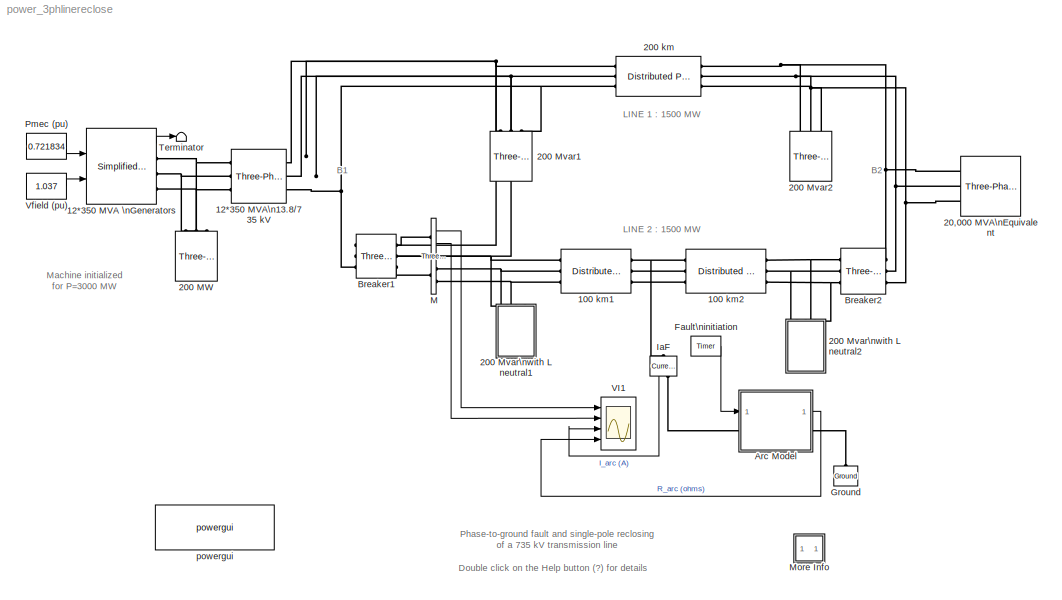
MODEL power_3phlinereclose
KIND model
BLOCK [Reference]  Breaker1  REF=powerlib/Elements/Three-Phase Breaker
  AttributesFormatString = \\n
  BreakerResistance = 0.001
  External = off
  InitialState = closed
  Measurements = None
  Ports = [0, 0, 0, 0, 0, 3, 3]
  ShowPortLabels = on
  SnubberCapacitance = inf
  SnubberResistance = 1e5
  SourceBlock = powerlib/Elements/Three-Phase Breaker
  SourceType = Three-Phase Breaker
  SwitchA = on
  SwitchB = off
  SwitchC = off
  SwitchTimes = [4/60  34/60]
BLOCK [Reference]  Breaker2  REF=powerlib/Elements/Three-Phase Breaker
  AttributesFormatString = \\n
  BreakerResistance = 0.001
  External = off
  InitialState = closed
  Measurements = None
  Ports = [0, 0, 0, 0, 0, 3, 3]
  ShowPortLabels = on
  SnubberCapacitance = inf
  SnubberResistance = 1e5
  SourceBlock = powerlib/Elements/Three-Phase Breaker
  SourceType = Three-Phase Breaker
  SwitchA = on
  SwitchB = off
  SwitchC = off
  SwitchTimes = [4/60  34/60]
BLOCK [Reference] 100  km1  REF=powerlib/Elements/Distributed Parameters Line
  AttributesFormatString = \\n
  Capacitance = [13.41e-9  8.57e-9]
  Frequency = 60
  Inductance = [0.8679e-3  3.008e-3]
  Length = 100
  Measurements = None
  Phases = 3
  Ports = [0, 0, 0, 0, 0, 3, 3]
  Resistance = [0.01165 0.2676]
  ShowPortLabels = on
  SourceBlock = powerlib/Elements/Distributed Parameters Line
  SourceType = Distributed Parameters Line
  x1 = [0 4.02705178345773e-008 472803.943791492 -555536.540470784;0.000101545182061977 3.40498179648926e-008 493719.170547751 -537034.187151238;0.000203090364123953 2.77792247481943e-008 513910.94844655 -517744.915291176;0.00030463554618593 2.14679265121164e-008 533349.690387524 -497696.989544924;0.000406180728247907 1.51251712295358e-008 552006.912697188 -476919.786225657;0.000507725910309884 8.7602529...<+48ch>
  x2 = [0 2.22321217810247e-008 426110.546159933 -596874.196271499;0.000101545182061977 1.8422129253629e-008 448642.075203804 -580128.633772847;0.000203090364123953 1.45851426997592e-008 470516.207054946 -562533.006252784;0.00030463554618593 1.0726784472575e-008 491700.889452397 -544113.096661183;0.000406180728247907 6.8527082412422e-009 512165.080388495 -524895.895772037;0.000507725910309884 2.968590706...<+45ch>
  x3 = [0 -4.58387424712223e-010 398.802996869194 -914.417744018894;0.000101545182061977 -4.6900146555621e-010 433.507996432241 -898.484331192913;0.000203090364123953 -4.78928276503843e-010 467.577774834296 -881.234365351327;0.00030463554618593 -4.88153311755674e-010 500.962409480231 -862.69312294444;0.000406180728247907 -4.96663053827248e-010 533.612981719056 -842.88777253575;0.000507725910309884 -5.044...<+52ch>
  x4 = [0 5.9976805423792e-010 2831.47677973377 -3826.92877538475;0.000101545182061977 5.94374114547943e-010 2975.86707537689 -3715.75790695924;0.000203090364123953 5.88109235871343e-010 3115.89681999411 -3599.14232224004;0.00030463554618593 5.80982598162212e-010 3251.36082738892 -3477.25289855288;0.000406180728247907 5.73004644113919e-010 3382.06060155949 -3350.26824100279;0.000507725910309884 5.6418706...<+47ch>
  x5 = 0.000507725910309884
BLOCK [Reference] 100  km2  REF=powerlib/Elements/Distributed Parameters Line
  AttributesFormatString = \\n
  Capacitance = [13.41e-9  8.57e-9]
  Frequency = 60
  Inductance = [0.8679e-3  3.008e-3]
  Length = 100
  Measurements = None
  Phases = 3
  Ports = [0, 0, 0, 0, 0, 3, 3]
  Resistance = [0.01165 0.2676]
  ShowPortLabels = on
  SourceBlock = powerlib/Elements/Distributed Parameters Line
  SourceType = Distributed Parameters Line
  x1 = [0 2.22321217810247e-008 426110.546159933 -596874.196271499;0.000101545182061977 1.8422129253629e-008 448642.075203804 -580128.633772847;0.000203090364123953 1.45851426997592e-008 470516.207054946 -562533.006252784;0.00030463554618593 1.0726784472575e-008 491700.889452397 -544113.096661183;0.000406180728247907 6.8527082412422e-009 512165.080388495 -524895.895772037;0.000507725910309884 2.968590706...<+45ch>
  x2 = [0 4.59735852839934e-009 372729.13846345 -628102.297137415;0.000101545182061977 3.36982514336241e-009 396494.954357377 -613376.898276943;0.000203090364123953 2.13735393882152e-009 419679.784462561 -597752.715567833;0.00030463554618593 9.01750860216852e-010 442249.655946163 -581252.643193266;0.000406180728247907 -3.3517355786267e-010 464171.497076899 -563900.858781373;0.000507725910309884 -1.571606...<+49ch>
  x3 = [0 -5.35956762016625e-010 506.939672451892 -849.356884933018;0.000101545182061977 -5.42195113669513e-010 539.075463597358 -829.332546268725;0.000203090364123953 -5.47638984453713e-010 570.421345111015 -808.09298300137;0.00030463554618593 -5.52280397441583e-010 600.931385735744 -785.669317555797;0.000406180728247907 -5.56112551550395e-010 630.560878975732 -762.094407426942;0.000507725910309884 -5.5...<+54ch>
  x4 = [0 5.99099720181025e-010 2312.99164112511 -4150.97769376106;0.000101545182061977 5.97237056827686e-010 2470.16390621821 -4059.41308469481;0.000203090364123953 5.94499259405894e-010 2623.71662934839 -3961.90019990165;0.00030463554618593 5.90890339622171e-010 2773.42480903965 -3858.58192543766;0.000406180728247907 5.86415585642443e-010 2919.06907724226 -3749.60965402176;0.000507725910309884 5.810815...<+49ch>
  x5 = 0.000507725910309884
BLOCK [Reference] 12*350 MVA \nGenerators  REF=powerlib/Machines/Simplified Synchronous\nMachine pu Units
  AttributesFormatString = \\n
  ConnectionType = 3-wire Y
  InitialConditions = [0 2.57592 0.717405 0.717405 0.717405 -11.4303 -131.43 108.57]
  InternalRL = [ 0.22/15, 0.22 ]
  LoadFlowParameters = [1 3000000000 0 0 0]
  Mechanical = [ inf,0,2 ]
  NominalParameters = [ 12*350e6,13.8e3,60 ]
  Ports = [2, 1, 0, 0, 0, 0, 3]
  ShowPortLabels = on
  SourceBlock = powerlib/Machines/Simplified Synchronous\nMachine pu Units
  SourceType = Simplified Synchronous Machine
  Units = 0
BLOCK [Reference] 12*350 MVA\n13.8//735 kV  REF=powerlib/Elements/Three-Phase\nTransformer\n(Two Windings)
  AttributesFormatString = \\n
  DataFile = 'hysteresis'
  Hysteresis = off
  InitialFluxes = [ 0.8 , -0.8 , 0.7 ]
  Lm = 500
  Measurements = None
  NominalPower = [ 12*350e6 , 60 ]
  Ports = [0, 0, 0, 0, 0, 3, 3]
  Rm = 500
  Saturation = [ 0,0 ; 0.0024,1.2 ; 1.0,1.52 ]
  SetInitialFlux = off
  SetSaturation = off
  ShowPortLabels = on
  SourceBlock = powerlib/Elements/Three-Phase\nTransformer\n(Two Windings)
  SourceType = Three-Phase Transformer (Two Windings)
  TransfoNumber = 0
  Winding1 = [ 13.8e3 , 0.002 , 0.08 ]
  Winding1Connection = Delta (D1)
  Winding2 = [ 735e3 , 0.002 , 0.08 ]
  Winding2Connection = Yg
BLOCK [Reference] 20,000 MVA\nEquivalent  REF=powerlib/Electrical\nSources/Three-Phase Source
  BaseVoltage = 735e3
  Frequency = 60
  Inductance = 735^2/20000/377
  InternalConnection = Yg
  PhaseAngle = 0
  Ports = [0, 0, 0, 0, 0, 0, 3]
  Resistance = 735^2/20000/10
  ShortCircuitLevel = 20000e6
  ShowPortLabels = on
  SourceBlock = powerlib/Electrical\nSources/Three-Phase Source
  SourceType = Three-Phase Source
  SpecifyImpedance = on
  Voltage = 735e3
  XRratio = 10
BLOCK [Reference] 200  km  REF=powerlib/Elements/Distributed Parameters Line
  AttributesFormatString = \\n
  Capacitance = [13.41e-9  8.57e-9]
  Frequency = 60
  Inductance = [0.8679e-3  3.008e-3]
  Length = 200
  Measurements = None
  Phases = 3
  Ports = [0, 0, 0, 0, 0, 3, 3]
  Resistance = [0.01165 0.2676]
  ShowPortLabels = on
  SourceBlock = powerlib/Elements/Distributed Parameters Line
  SourceType = Distributed Parameters Line
  x1 = [0 7.02850624185661e-008 397648.481541654 -611590.683160231;0.000203090364123953 5.84450393918789e-008 443263.140154233 -579383.379701848;0.000406180728247907 4.62625827673498e-008 486280.688841777 -543781.428257846;0.00060927109237186 3.38090704154687e-008 526449.08475992 -504993.423166597;0.000812361456495814 2.11574683413028e-008 563532.978450831 -463246.626078958;0.00101545182061977 8.38190317...<+47ch>
  x2 = [0 1.07284970616671e-008 289091.132559122 -670718.411670409;0.000203090364123953 8.34931711874698e-009 339546.435190599 -646641.332353954;0.000406180728247907 5.92121793939131e-009 388012.311368668 -618775.53597519;0.00060927109237186 3.45842592752685e-009 434204.796114864 -587284.290195669;0.000812361456495814 9.75370754826919e-010 477853.244411074 -552352.104440056;0.00101545182061977 -1.5133991...<+48ch>
  x3 = [0 -3.94575629964779e-010 275.972756440155 -952.973890092729;0.000203090364123953 -4.20081661821716e-010 348.056371840659 -929.072582426811;0.000406180728247907 -4.43126405666159e-010 418.100700470185 -899.727773133261;0.00060927109237186 -4.63574840722552e-010 485.69534767915 -865.111395514356;0.000812361456495814 -4.81307158171201e-010 550.444271673768 -825.426269362086;0.00101545182061977 -4.96...<+53ch>
  x4 = [0 5.79618896597322e-010 1755.99549575464 -4400.33732412217;0.000203090364123953 5.84376073526628e-010 2087.4253958724 -4253.13324126328;0.000406180728247907 5.85709349925921e-010 2406.62492372979 -4081.00975150415;0.00060927109237186 5.83610914034972e-010 2711.72386683501 -3884.97533848145;0.000812361456495814 5.78093060737307e-010 3000.93462901443 -3666.17858161356;0.00101545182061977 5.69188119...<+47ch>
  x5 = 0.00101545182061977
BLOCK [Reference] 200 MW  REF=powerlib/Elements/Three-Phase\nSeries RLC Load
  ActivePower = 200e6
  AttributesFormatString = \\n
  CapacitivePower = 0
  Configuration = Y (grounded)
  InductivePower = 0
  LConnTagsString = A|B|C
  LeftPortType = p1
  Measurements = None
  NominalFrequency = 60
  NominalVoltage = 13.8e3
  PhysicalDomain = powersysdomain
  Ports = [0, 0, 0, 0, 0, 3]
  RightPortType = p1
  SourceBlock = powerlib/Elements/Three-Phase\nSeries RLC Load
  SourceType = Three-Phase Series RLC Load
  SubClassName = unknown
BLOCK [Reference] 200 Mvar1  REF=powerlib/Elements/Three-Phase\nSeries RLC Load
  ActivePower = 200e6/250
  AttributesFormatString = \\n
  CapacitivePower = 0
  Configuration = Y (grounded)
  InductivePower = 200e6
  LConnTagsString = A|B|C
  LeftPortType = p1
  Measurements = None
  NominalFrequency = 60
  NominalVoltage = 735e3
  PhysicalDomain = powersysdomain
  Ports = [0, 0, 0, 0, 0, 3]
  RightPortType = p1
  SourceBlock = powerlib/Elements/Three-Phase\nSeries RLC Load
  SourceType = Three-Phase Series RLC Load
  SubClassName = unknown
BLOCK [Reference] 200 Mvar2  REF=powerlib/Elements/Three-Phase\nSeries RLC Load
  ActivePower = 200e6/250
  AttributesFormatString = \\n
  CapacitivePower = 0
  Configuration = Y (grounded)
  InductivePower = 200e6
  LConnTagsString = A|B|C
  LeftPortType = p1
  Measurements = None
  NominalFrequency = 60
  NominalVoltage = 735e3
  PhysicalDomain = powersysdomain
  Ports = [0, 0, 0, 0, 0, 3]
  RightPortType = p1
  SourceBlock = powerlib/Elements/Three-Phase\nSeries RLC Load
  SourceType = Three-Phase Series RLC Load
  SubClassName = unknown
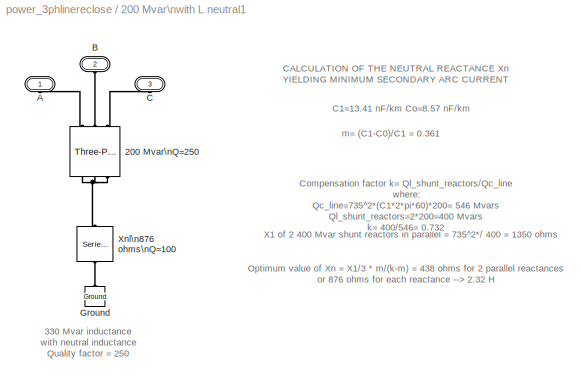
BLOCK [SubSystem] 200 Mvar\nwith L neutral1
  MaskIconFrame = on
  MaskIconOpaque = on
  MaskIconRotate = none
  MaskIconUnits = autoscale
  MinAlgLoopOccurrences = off
  Ports = [0, 0, 0, 0, 0, 3]
  RTWSystemCode = Auto
  TreatAsAtomicUnit = off
BLOCK [Reference] 200 Mvar\nwith L neutral1/200 Mvar\nQ=250  REF=powerlib/Elements/Three-Phase\nSeries RLC Branch
  AttributesFormatString = \\n
  Capacitance = inf
  Inductance = 735^2/200/377
  LConnTagsString = A|B|C
  LeftPortType = p1
  Measurements = None
  PhysicalDomain = powersysdomain
  Ports = [0, 0, 0, 0, 0, 3, 3]
  RConnTagsString = A|B|C
  Resistance = 735^2/200/250
  RightPortType = p1
  SourceBlock = powerlib/Elements/Three-Phase\nSeries RLC Branch
  SourceType = Three-Phase Series RLC Branch
  SubClassName = unknown
BLOCK [PMIOPort] 200 Mvar\nwith L neutral1/A
  Port = 1
  Side = Left
BLOCK [PMIOPort] 200 Mvar\nwith L neutral1/B
  Port = 2
  Side = Left
BLOCK [PMIOPort] 200 Mvar\nwith L neutral1/C
  Port = 3
  Side = Left
BLOCK [Reference] 200 Mvar\nwith L neutral1/Ground  REF=powerlib/Elements/Ground
  AttributesFormatString = \\n
  LConnTagsString = a
  LeftPortType = p1
  PhysicalDomain = powersysdomain
  Ports = [0, 0, 0, 0, 0, 1]
  RightPortType = p1
  SourceBlock = powerlib/Elements/Ground
  SourceType = Ground
  SubClassName = unknown
BLOCK [Reference] 200 Mvar\nwith L neutral1/Xnl\n876 ohms\nQ=100  REF=powerlib/Elements/Series RLC Branch
  AttributesFormatString = \\n
  Capacitance = inf
  Inductance = 876/377
  LConnTagsString = __new0
  LeftPortType = p1
  Measurements = None
  PhysicalDomain = powersysdomain
  Ports = [0, 0, 0, 0, 0, 1, 1]
  RConnTagsString = __new0
  Resistance = 876/100
  RightPortType = p1
  SourceBlock = powerlib/Elements/Series RLC Branch
  SourceType = Series RLC Branch
  SubClassName = unknown
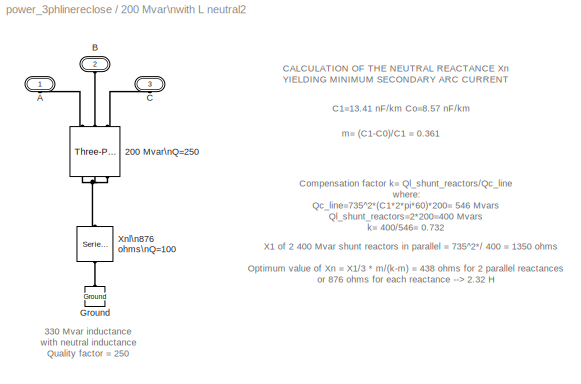
BLOCK [SubSystem] 200 Mvar\nwith L neutral2
  MaskIconFrame = on
  MaskIconOpaque = on
  MaskIconRotate = none
  MaskIconUnits = autoscale
  MinAlgLoopOccurrences = off
  Ports = [0, 0, 0, 0, 0, 3]
  RTWSystemCode = Auto
  TreatAsAtomicUnit = off
BLOCK [Reference] 200 Mvar\nwith L neutral2/200 Mvar\nQ=250  REF=powerlib/Elements/Three-Phase\nSeries RLC Branch
  AttributesFormatString = \\n
  Capacitance = inf
  Inductance = 735^2/200/377
  LConnTagsString = A|B|C
  LeftPortType = p1
  Measurements = None
  PhysicalDomain = powersysdomain
  Ports = [0, 0, 0, 0, 0, 3, 3]
  RConnTagsString = A|B|C
  Resistance = 735^2/200/250
  RightPortType = p1
  SourceBlock = powerlib/Elements/Three-Phase\nSeries RLC Branch
  SourceType = Three-Phase Series RLC Branch
  SubClassName = unknown
BLOCK [PMIOPort] 200 Mvar\nwith L neutral2/A
  Port = 1
  Side = Left
BLOCK [PMIOPort] 200 Mvar\nwith L neutral2/B
  Port = 2
  Side = Left
BLOCK [PMIOPort] 200 Mvar\nwith L neutral2/C
  Port = 3
  Side = Left
BLOCK [Reference] 200 Mvar\nwith L neutral2/Ground  REF=powerlib/Elements/Ground
  AttributesFormatString = \\n
  LConnTagsString = a
  LeftPortType = p1
  PhysicalDomain = powersysdomain
  Ports = [0, 0, 0, 0, 0, 1]
  RightPortType = p1
  SourceBlock = powerlib/Elements/Ground
  SourceType = Ground
  SubClassName = unknown
BLOCK [Reference] 200 Mvar\nwith L neutral2/Xnl\n876 ohms\nQ=100  REF=powerlib/Elements/Series RLC Branch
  AttributesFormatString = \\n
  Capacitance = inf
  Inductance = 876/377
  LConnTagsString = __new0
  LeftPortType = p1
  Measurements = None
  PhysicalDomain = powersysdomain
  Ports = [0, 0, 0, 0, 0, 1, 1]
  RConnTagsString = __new0
  Resistance = 876/100
  RightPortType = p1
  SourceBlock = powerlib/Elements/Series RLC Branch
  SourceType = Series RLC Branch
  SubClassName = unknown
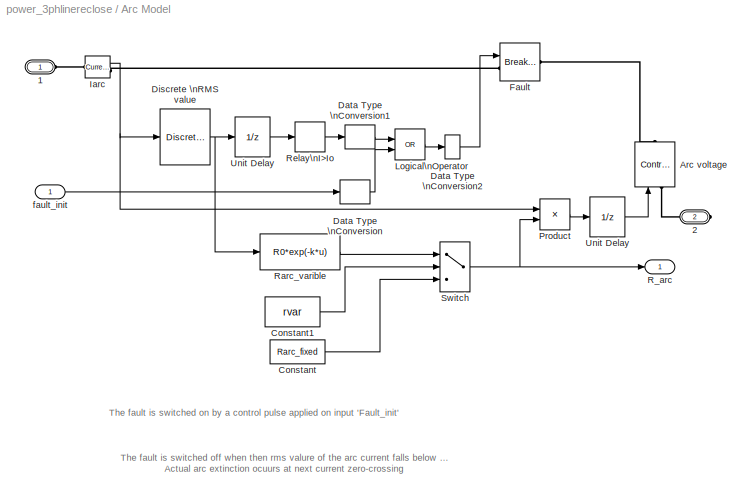
BLOCK [SubSystem] Arc  Model
  MaskCallbackString = ||||
  MaskDescription = This block implements a variable or fixed arc resistance model.\n \nInput 1, output 1:  Connection terminals of the arc \n                             resistance.\nInput 2 :    Control signal for the fault initiation\nUse a short pulse of 1 cycle. Once fault current starts flowing, it is sustained by the arc ionized path.\nOutput 2:  Arc resitance \n\nIf you check the 'Variable arc resistance' box...<+385ch>
  MaskEnableString = on,on,on,on,on
  MaskIconFrame = on
  MaskIconOpaque = on
  MaskIconRotate = none
  MaskIconUnits = autoscale
  MaskInitialization = if strcmp(Rarc_var,'on'), rvar=1; else, rvar=0; end\nR0=Rparam(1);\nk=Rparam(2);
  MaskPromptString = Variable arc resistance :|Arc resistance for fixed arc resistance :|Arc parameters for variable arc resistance [Ro k] : :|Current threshold for arc extinction Io (A rms) :|Sample time (s) :
  MaskStyleString = checkbox,edit,edit,edit,edit
  MaskTabNameString = ,,,,
  MaskToolTipString = on,on,on,on,on
  MaskTunableValueString = on,on,on,on,on
  MaskType = Arc model
  MaskValueString = on|0.1|[56.54 0.006375]|50|50e-6
  MaskVarAliasString = ,,,,
  MaskVariables = Rarc_var=&1;Rarc_fixed=@2;Rparam=@3;I0=@4;Ts=@5;
  MaskVisibilityString = on,on,on,on,on
  MinAlgLoopOccurrences = off
  Ports = [1, 1, 0, 0, 0, 1, 1]
  RTWSystemCode = Auto
  TreatAsAtomicUnit = off
BLOCK [PMIOPort] Arc  Model/1
  Port = 1
  Side = Left
BLOCK [PMIOPort] Arc  Model/2
  Port = 2
  Side = Right
BLOCK [Reference] Arc  Model/Arc voltage  REF=powerlib/Electrical\nSources/Controlled Voltage Source
  Amplitude = 0
  AttributesFormatString = \\n
  Description = source block
  Frequency = 0
  Initialize = on
  Measurements = None
  Phase = 0
  Ports = [1, 0, 0, 0, 0, 1, 1]
  ShowPortLabels = on
  SourceBlock = powerlib/Electrical\nSources/Controlled Voltage Source
  SourceType = AC
BLOCK [Constant] Arc  Model/Constant
  Value = Rarc_fixed
BLOCK [Constant] Arc  Model/Constant1
  Value = rvar
BLOCK [DataTypeConversion] Arc  Model/Data Type \nConversion
  OutDataTypeMode = boolean
BLOCK [DataTypeConversion] Arc  Model/Data Type \nConversion1
  OutDataTypeMode = boolean
BLOCK [DataTypeConversion] Arc  Model/Data Type \nConversion2
  OutDataTypeMode = double
BLOCK [Reference] Arc  Model/Discrete \nRMS value  REF=powerlib_extras/Discrete\nMeasurements/Discrete \nRMS value
  Freq = 60
  Mag_Init = 0
  Ports = [1, 1]
  ShowPortLabels = on
  SourceBlock = powerlib_extras/Discrete\nMeasurements/Discrete \nRMS value
  SourceType = Discrete RMS value
  Ts = Ts
BLOCK [Reference] Arc  Model/Fault  REF=powerlib/Elements/Breaker
  AttributesFormatString = \\n
  BreakerResistance = .001
  External = on
  InitialState = 0
  Measurements = None
  Ports = [1, 0, 0, 0, 0, 1, 1]
  ShowPortLabels = on
  SnubberCapacitance = 0
  SnubberResistance = inf
  SourceBlock = powerlib/Elements/Breaker
  SourceType = Breaker
  SwitchingTimes = [ 4/60  5/60 ]
BLOCK [Reference] Arc  Model/Iarc  REF=powerlib/Measurements/Current Measurement
  AttributesFormatString = \\n
  OutputType = Magnitude
  PSBequivalent = 0
  PhasorSimulation = off
  Ports = [0, 1, 0, 0, 0, 1, 1]
  ShowPortLabels = on
  SourceBlock = powerlib/Measurements/Current Measurement
  SourceType = Current Measurement
  Tag = PoWeRsYsTeMmEaSuReMeNt
BLOCK [Logic] Arc  Model/Logical\nOperator
  Operator = OR
  Ports = [2, 1]
BLOCK [Product] Arc  Model/Product
  Ports = [2, 1]
  RndMeth = Floor
BLOCK [Outport] Arc  Model/R_arc
  BusOutputAsStruct = off
  IconDisplay = Port number
BLOCK [Fcn] Arc  Model/Rarc_varible
  Expr = R0*exp(-k*u)
BLOCK [Relay] Arc  Model/Relay\nI>Io
  OffSwitchValue = I0
  OnSwitchValue = I0*1.2
  ZeroCross = off
BLOCK [Switch] Arc  Model/Switch
  SaturateOnIntegerOverflow = off
  Threshold = 0.5
  ZeroCross = off
BLOCK [UnitDelay] Arc  Model/Unit Delay
  SampleTime = Ts
BLOCK [UnitDelay] Arc  Model/Unit Delay 
  SampleTime = Ts
BLOCK [Inport] Arc  Model/fault_init
  IconDisplay = Port number
  LatchInput = off
  Port = 1
BLOCK [Reference] Fault\ninitiation  REF=powerlib_extras/Control \nBlocks/Timer
  Ports = [0, 1]
  ShowPortLabels = on
  SourceBlock = powerlib_extras/Control \nBlocks/Timer
  SourceType = Timer
  e = [1 0  ]
  t = [ 1/60 2/60 ]
BLOCK [Reference] Ground  REF=powerlib/Elements/Ground
  AttributesFormatString = \\n
  LConnTagsString = a
  LeftPortType = p1
  PhysicalDomain = powersysdomain
  Ports = [0, 0, 0, 0, 0, 1]
  RightPortType = p1
  SourceBlock = powerlib/Elements/Ground
  SourceType = Ground
  SubClassName = unknown
BLOCK [Reference] IaF  REF=powerlib/Measurements/Current Measurement
  AttributesFormatString = \\n
  OutputType = Magnitude
  PSBequivalent = 0
  PhasorSimulation = off
  Ports = [0, 1, 0, 0, 0, 1, 1]
  ShowPortLabels = on
  SourceBlock = powerlib/Measurements/Current Measurement
  SourceType = Current Measurement
  Tag = PoWeRsYsTeMmEaSuReMeNt
BLOCK [Reference] M  REF=powerlib/Measurements/Three-Phase\nV-I Measurement
  CurrentMeasurement = yes
  Ipu = on
  LabelI = I1
  LabelV = V1
  OutputType = Magnitude
  PSBequivalent = 0
  Pbase = 100e6
  PhasorSimulation = off
  Ports = [0, 2, 0, 0, 0, 3, 3]
  SetLabelI = off
  SetLabelV = off
  ShowPortLabels = on
  SourceBlock = powerlib/Measurements/Three-Phase\nV-I Measurement
  SourceType = Three-Phase VI Measurement
  Vbase = 735e3
  VoltageMeasurement = phase-to-ground
  Vpu = on
BLOCK [SubSystem] More Info
  MaskDisplay = disp('?')
  MaskIconFrame = on
  MaskIconOpaque = on
  MaskIconRotate = none
  MaskIconUnits = autoscale
  MinAlgLoopOccurrences = off
  Ports = []
  RTWSystemCode = Auto
  TreatAsAtomicUnit = off
BLOCK [Constant] Pmec (pu)
  Value = 0.721834
BLOCK [Terminator] Terminator
BLOCK [Scope] VI1
  DataFormat = Array
  LimitDataPoints = off
  NumInputPorts = 4
  Ports = [4]
  TimeRange = 0.7000000000000001
  YMax = 2~100~50000~100
  YMin = -2~-100~-50000~0
  ZoomMode = yonly
BLOCK [Constant] Vfield (pu)
  Value = 1.037
BLOCK [Reference] powergui  REF=powerlib/powergui
  DisplayStyle = off
  Frange = logspace(0,3,50)
  FreqAxis = off
  MaxFrequency = 1000
  Ports = []
  Priority = 2
  RmsSteady = 1
  ShowPortLabels = on
  SourceBlock = powerlib/powergui
  SourceType = PSB option menu block
  StartTime = 0.0
  Ts = 50e-6
  Xlog = off
  Ylog = off
  ZoomFFT = on
  cycles = 1
  display = off
  echomessages = on
  frequency = 60
  frequencyindice = 60
  frequencyindicesteady = 1
  fundamental = 60
  methode = off
  save = off
  variable = ZData
ANNOTATION (root): B1
ANNOTATION (root): B2
ANNOTATION (root): Double click on the Help button (?) for details
ANNOTATION (root): LINE 1 : 1500 MW
ANNOTATION (root): LINE 2 : 1500 MW
ANNOTATION (root): Machine initialized\n for P=3000 MW
ANNOTATION (root): Phase-to-ground fault and single-pole reclosing \nof a 735 kV transmission line
ANNOTATION 200 Mvar\nwith L neutral1: 330 Mvar inductance \nwith neutral inductance\nQuality factor = 250
ANNOTATION 200 Mvar\nwith L neutral1: C1=13.41 nF/km Co=8.57 nF/km
ANNOTATION 200 Mvar\nwith L neutral1: CALCULATION OF THE NEUTRAL REACTANCE Xn\nYIELDING MINIMUM SECONDARY ARC CURRENT
ANNOTATION 200 Mvar\nwith L neutral1: Compensation factor k= Ql_shunt_reactors/Qc_line\nwhere:\n Qc_line=735^2*(C1*2*pi*60)*200= 546 Mvars\n Ql_shunt_reactors=2*200=400 Mvars\nk= 400/546= 0.732
ANNOTATION 200 Mvar\nwith L neutral1: Optimum value of Xn = X1/3 * m/(k-m) = 438 ohms for 2 parallel reactances\nor 876 ohms for each reactance --> 2.32 H
ANNOTATION 200 Mvar\nwith L neutral1: X1 of 2 400 Mvar shunt reactors in parallel = 735^2*/ 400 = 1350 ohms
ANNOTATION 200 Mvar\nwith L neutral1: m= (C1-C0)/C1 = 0.361
ANNOTATION 200 Mvar\nwith L neutral2: 330 Mvar inductance \nwith neutral inductance\nQuality factor = 250
ANNOTATION 200 Mvar\nwith L neutral2: C1=13.41 nF/km Co=8.57 nF/km
ANNOTATION 200 Mvar\nwith L neutral2: CALCULATION OF THE NEUTRAL REACTANCE Xn\nYIELDING MINIMUM SECONDARY ARC CURRENT
ANNOTATION 200 Mvar\nwith L neutral2: Compensation factor k= Ql_shunt_reactors/Qc_line\nwhere:\n Qc_line=735^2*(C1*2*pi*60)*200= 546 Mvars\n Ql_shunt_reactors=2*200=400 Mvars\nk= 400/546= 0.732
ANNOTATION 200 Mvar\nwith L neutral2: Optimum value of Xn = X1/3 * m/(k-m) = 438 ohms for 2 parallel reactances\nor 876 ohms for each reactance --> 2.32 H
ANNOTATION 200 Mvar\nwith L neutral2: X1 of 2 400 Mvar shunt reactors in parallel = 735^2*/ 400 = 1350 ohms
ANNOTATION 200 Mvar\nwith L neutral2: m= (C1-C0)/C1 = 0.361
ANNOTATION Arc  Model: The fault is switched off when then rms valure of the arc current falls below 50 A.\nActual arc extinction ocuurs at next current zero-crossing
ANNOTATION Arc  Model: The fault is switched on by a control pulse applied on input 'Fault_init'
ANNOTATION More Info: A phase-to-ground fault is applied at the middle of line 2. In order to apply the fault along the line, \nthis line is simulated in two sections of 100 km. As soon as the fault is detected by the protection relays (not simulated here) , \nan opening command is sent to the two line breakers of the faulted phase. The breaker are kept open during a certain 'dead time' , \nusually around 0.5 s, during...<+370ch>
ANNOTATION More Info: Arc model
ANNOTATION More Info: Choose Simulation/Start and observe the voltage and current waveforms on the 4-trace oscilloscope.\n\nObserve the three phase-to-ground voltages and currents at sending end of line 2 and the current flowing into the fault. The line voltages\nand currents are measured with the 3-phase measurement bus of the Extras library. It allows to output voltages and currents directly in pu. \nThe machine has ...<+982ch>
ANNOTATION More Info: Circuit Description
ANNOTATION More Info: Demonstration
ANNOTATION More Info: Fault and line switching
ANNOTATION More Info: G. Sybille (Hydro-Quebec)
ANNOTATION More Info: The arc is modelled by a fixed or non-linear resistance R = f(Iarc_rms). The arc extinguishes when its rms current falls below a \ncertain threshold value (typically 50 A) defined in the arc model block. Open the Arc Model block and look at the arc parameters. \nThe mean arc resistance is programmed as an exponential function of the rms current. The mean arc resistance increases when the rms arc c...<+700ch>
ANNOTATION More Info: This demonstration ilustrates the use of three-phase blocks\nto study of a single-pole reclosing on a 735-kV transmission line
ANNOTATION More Info: Two 735 kV parallel lines, 200 km long, transmit 3000 MW of power from a generation plant (12 generators of 350 MVA) to\nto an equivalent network having a short circuit level of 20 GVA.\n\nThe generation plant is simulated with a simplified synchronous machine (subtransient reactance of 0.22 pu). \nThe machine is connected to the transmission network through a 13.8 kV/ 735 kV Wye-Delta transformer...<+801ch>
LINE 12*350 MVA \nGenerators:1 -> Terminator:1
LINE Arc  Model/Constant1:1 -> Arc  Model/Switch:2
LINE Arc  Model/Constant:1 -> Arc  Model/Switch:3
LINE Arc  Model/Data Type \nConversion1:1 -> Arc  Model/Logical\nOperator:1
LINE Arc  Model/Data Type \nConversion2:1 -> Arc  Model/Fault:1
LINE Arc  Model/Data Type \nConversion:1 -> Arc  Model/Logical\nOperator:2
NET Arc  Model/Discrete \nRMS value:1 -> Arc  Model/Rarc_varible:1, Arc  Model/Unit Delay :1
NET Arc  Model/Iarc:1 -> Arc  Model/Discrete \nRMS value:1, Arc  Model/Product:1
LINE Arc  Model/Logical\nOperator:1 -> Arc  Model/Data Type \nConversion2:1
LINE Arc  Model/Product:1 -> Arc  Model/Unit Delay:1
LINE Arc  Model/Rarc_varible:1 -> Arc  Model/Switch:1
LINE Arc  Model/Relay\nI>Io:1 -> Arc  Model/Data Type \nConversion1:1
NET Arc  Model/Switch:1 -> Arc  Model/Product:2, Arc  Model/R_arc:1
LINE Arc  Model/Unit Delay :1 -> Arc  Model/Relay\nI>Io:1
LINE Arc  Model/Unit Delay:1 -> Arc  Model/Arc voltage:1
LINE Arc  Model/fault_init:1 -> Arc  Model/Data Type \nConversion:1
LINE Arc  Model:1 -> VI1:4
LINE Fault\ninitiation:1 -> Arc  Model:1
LINE IaF:1 -> VI1:3
LINE M:1 -> VI1:1
LINE M:2 -> VI1:2
LINE Pmec (pu):1 -> 12*350 MVA \nGenerators:1
LINE Vfield (pu):1 -> 12*350 MVA \nGenerators:2
PNET net1:  Breaker1:LConn1 -- 12*350 MVA\n13.8//735 kV:RConn1 -- 200  km:LConn1 -- 200 Mvar1:LConn1
PNET net2:  Breaker1:LConn2 -- 12*350 MVA\n13.8//735 kV:RConn2 -- 200  km:LConn2 -- 200 Mvar1:LConn2
PNET net3:  Breaker1:LConn3 -- 12*350 MVA\n13.8//735 kV:RConn3 -- 200  km:LConn3 -- 200 Mvar1:LConn3
PLINE  Breaker1:RConn1 -- M:LConn1
PLINE  Breaker1:RConn2 -- M:LConn2
PLINE  Breaker1:RConn3 -- M:LConn3
PNET net4:  Breaker2:LConn1 -- 100  km2:RConn1 -- 200 Mvar\nwith L neutral2:LConn1
PNET net5:  Breaker2:LConn2 -- 100  km2:RConn2 -- 200 Mvar\nwith L neutral2:LConn2
PNET net6:  Breaker2:LConn3 -- 100  km2:RConn3 -- 200 Mvar\nwith L neutral2:LConn3
PNET net7:  Breaker2:RConn1 -- 20,000 MVA\nEquivalent:RConn1 -- 200  km:RConn1 -- 200 Mvar2:LConn1
PNET net8:  Breaker2:RConn2 -- 20,000 MVA\nEquivalent:RConn2 -- 200  km:RConn2 -- 200 Mvar2:LConn2
PNET net9:  Breaker2:RConn3 -- 20,000 MVA\nEquivalent:RConn3 -- 200  km:RConn3 -- 200 Mvar2:LConn3
PNET net10: 100  km1:LConn1 -- 200 Mvar\nwith L neutral1:LConn1 -- M:RConn1
PNET net11: 100  km1:LConn2 -- 200 Mvar\nwith L neutral1:LConn2 -- M:RConn2
PNET net12: 100  km1:LConn3 -- 200 Mvar\nwith L neutral1:LConn3 -- M:RConn3
PNET net13: 100  km1:RConn1 -- 100  km2:LConn1 -- IaF:LConn1
PLINE 100  km1:RConn2 -- 100  km2:LConn2
PLINE 100  km1:RConn3 -- 100  km2:LConn3
PNET net14: 12*350 MVA \nGenerators:RConn1 -- 12*350 MVA\n13.8//735 kV:LConn1 -- 200 MW:LConn1
PNET net15: 12*350 MVA \nGenerators:RConn2 -- 12*350 MVA\n13.8//735 kV:LConn2 -- 200 MW:LConn2
PNET net16: 12*350 MVA \nGenerators:RConn3 -- 12*350 MVA\n13.8//735 kV:LConn3 -- 200 MW:LConn3
PLINE 200 Mvar\nwith L neutral1/200 Mvar\nQ=250:LConn1 -- 200 Mvar\nwith L neutral1/A:RConn1
PLINE 200 Mvar\nwith L neutral1/200 Mvar\nQ=250:LConn2 -- 200 Mvar\nwith L neutral1/B:RConn1
PLINE 200 Mvar\nwith L neutral1/200 Mvar\nQ=250:LConn3 -- 200 Mvar\nwith L neutral1/C:RConn1
PNET net17: 200 Mvar\nwith L neutral1/200 Mvar\nQ=250:RConn1 -- 200 Mvar\nwith L neutral1/200 Mvar\nQ=250:RConn2 -- 200 Mvar\nwith L neutral1/200 Mvar\nQ=250:RConn3 -- 200 Mvar\nwith L neutral1/Xnl\n876 ohms\nQ=100:LConn1
PLINE 200 Mvar\nwith L neutral1/Ground:LConn1 -- 200 Mvar\nwith L neutral1/Xnl\n876 ohms\nQ=100:RConn1
PLINE 200 Mvar\nwith L neutral2/200 Mvar\nQ=250:LConn1 -- 200 Mvar\nwith L neutral2/A:RConn1
PLINE 200 Mvar\nwith L neutral2/200 Mvar\nQ=250:LConn2 -- 200 Mvar\nwith L neutral2/B:RConn1
PLINE 200 Mvar\nwith L neutral2/200 Mvar\nQ=250:LConn3 -- 200 Mvar\nwith L neutral2/C:RConn1
PNET net18: 200 Mvar\nwith L neutral2/200 Mvar\nQ=250:RConn1 -- 200 Mvar\nwith L neutral2/200 Mvar\nQ=250:RConn2 -- 200 Mvar\nwith L neutral2/200 Mvar\nQ=250:RConn3 -- 200 Mvar\nwith L neutral2/Xnl\n876 ohms\nQ=100:LConn1
PLINE 200 Mvar\nwith L neutral2/Ground:LConn1 -- 200 Mvar\nwith L neutral2/Xnl\n876 ohms\nQ=100:RConn1
PLINE Arc  Model/1:RConn1 -- Arc  Model/Iarc:LConn1
PLINE Arc  Model/2:RConn1 -- Arc  Model/Arc voltage:LConn1
PLINE Arc  Model/Arc voltage:RConn1 -- Arc  Model/Fault:RConn1
PLINE Arc  Model/Fault:LConn1 -- Arc  Model/Iarc:RConn1
PLINE Arc  Model:LConn1 -- IaF:RConn1
PLINE Arc  Model:RConn1 -- Ground:LConn1
note: NET lines group one-source signal fan-out (src -> all destinations, sorted); 1:1 wires keep LINE; PNET lines group multi-terminal physical nets as a canonical sorted terminal list (undirected conserving connections); 2-terminal nets keep the pairwise PLINE form
